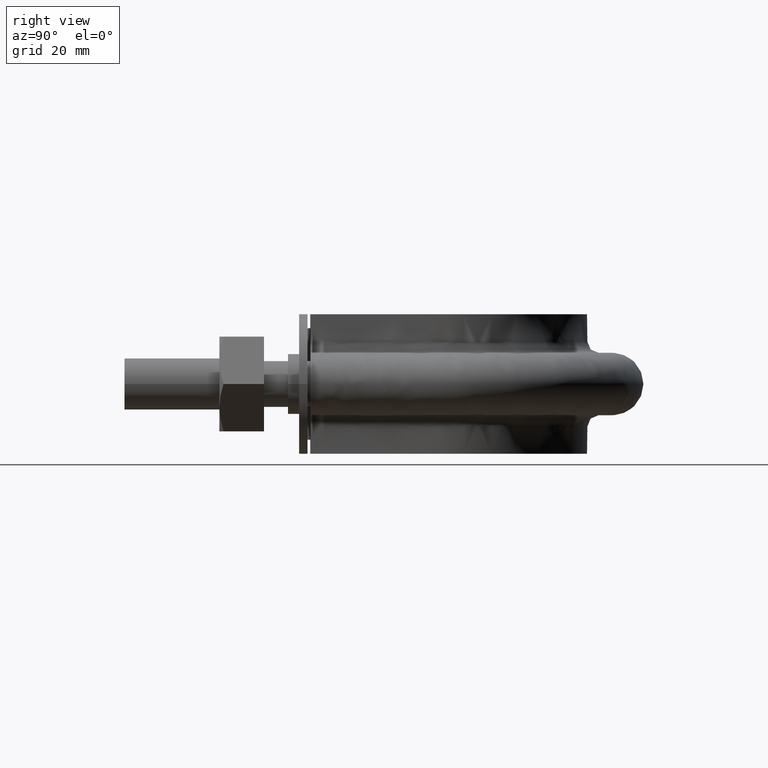
[diagram: clean part render]
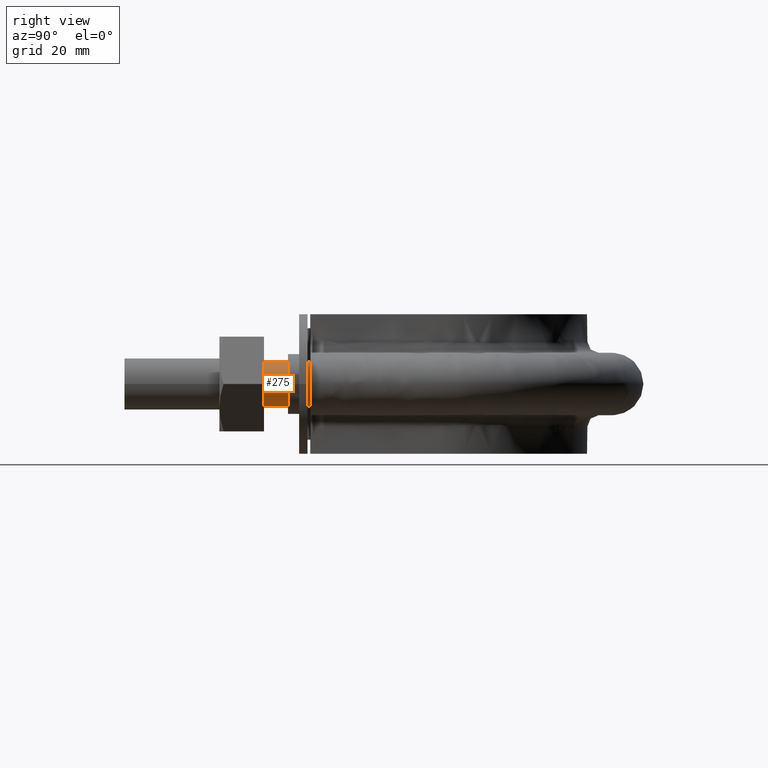
[diagram: same view with one face highlighted and labeled with its STEP entity id]
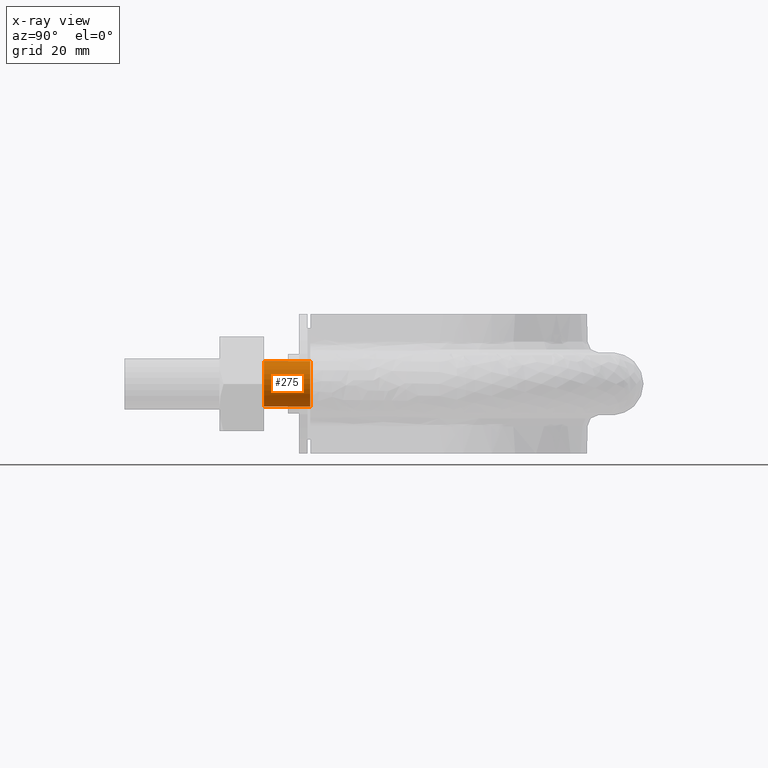
[diagram: x-ray of the same camera — body ghosted, the highlighted face saturated]
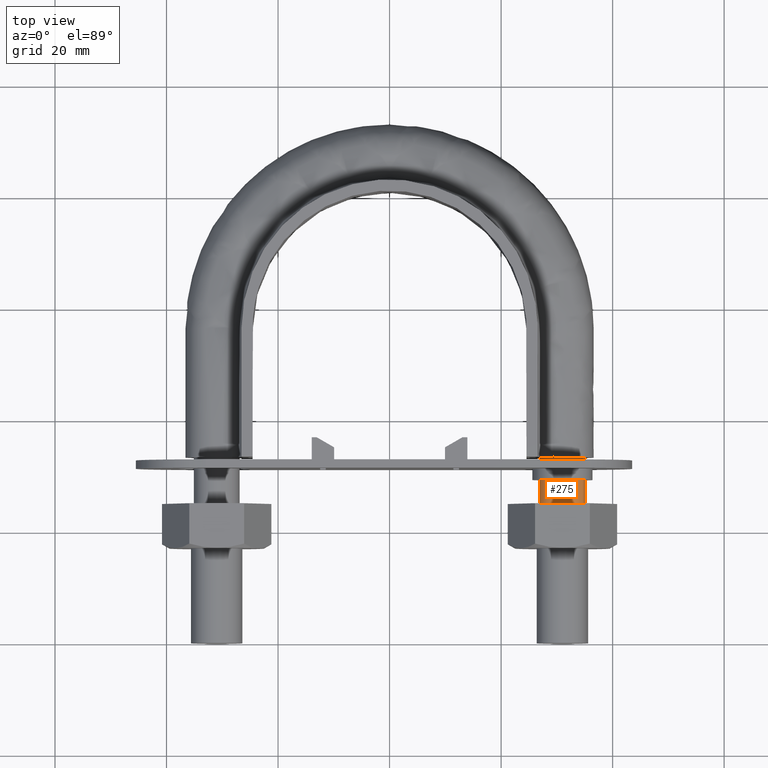
[diagram: same view with one face highlighted and labeled with its STEP entity id]
A machine part, right view. The second image highlights one B-rep face of the part: STEP entity #275.
The next image is the same camera in x-ray: the body ghosted, the highlighted face saturated — about 0% of this face is hidden behind the body in this view.
A second angle (top view) of the same face is appended — the face is thin or edge-on in the first view.
In plain terms, the highlighted cylindrical surface (bore or boss wall) has radius 4.1 mm, axis along (0, 1, 0).
Its self-contained STEP definition (entity closure, byte-faithful):
#275 = ADVANCED_FACE( '', ( #401, #402 ), #403, .T. );
#401 = FACE_OUTER_BOUND( '', #1334, .T. );
#402 = FACE_OUTER_BOUND( '', #1335, .T. );
#403 = CYLINDRICAL_SURFACE( '', #1336, 4.10000000000000 );
#1334 = EDGE_LOOP( '', ( #1789, #1790, #1791, #1792, #1793, #1794, #1795 ) );
#1335 = EDGE_LOOP( '', ( #1796 ) );
#1336 = AXIS2_PLACEMENT_3D( '', #1797, #1798, #1799 );
#1789 = ORIENTED_EDGE( '', *, *, #2567, .T. );
#1790 = ORIENTED_EDGE( '', *, *, #2568, .T. );
#1791 = ORIENTED_EDGE( '', *, *, #2569, .T. );
#1792 = ORIENTED_EDGE( '', *, *, #2570, .T. );
#1793 = ORIENTED_EDGE( '', *, *, #2571, .T. );
#1794 = ORIENTED_EDGE( '', *, *, #2572, .T. );
#1795 = ORIENTED_EDGE( '', *, *, #2573, .T. );
#1796 = ORIENTED_EDGE( '', *, *, #2574, .T. );
#1797 = CARTESIAN_POINT( '', ( 31.0000000000000, 33.3000000000000, 1.03938464280674E-014 ) );
#1798 = DIRECTION( '', ( 2.44921270764475E-016, 1.00000000000000, 3.06151588455594E-016 ) );
#1799 = DIRECTION( '', ( 1.00000000000000, -2.44921270764475E-016, -3.74915180455534E-032 ) );
#2567 = EDGE_CURVE( '', #2825, #2826, #2827, .T. );
#2568 = EDGE_CURVE( '', #2826, #2828, #2829, .T. );
#2569 = EDGE_CURVE( '', #2828, #2830, #2831, .T. );
#2570 = EDGE_CURVE( '', #2830, #2832, #2833, .T. );
#2571 = EDGE_CURVE( '', #2832, #2834, #2835, .T. );
#2572 = EDGE_CURVE( '', #2834, #2836, #2837, .T. );
#2573 = EDGE_CURVE( '', #2836, #2825, #2838, .T. );
#2574 = EDGE_CURVE( '', #2839, #2839, #2840, .F. );
#2825 = VERTEX_POINT( '', #3421 );
#2826 = VERTEX_POINT( '', #3422 );
#2827 = CIRCLE( '', #3423, 4.10000000000000 );
#2828 = VERTEX_POINT( '', #3424 );
#2829 = CIRCLE( '', #3425, 4.10000000000000 );
#2830 = VERTEX_POINT( '', #3426 );
#2831 = CIRCLE( '', #3427, 4.10000000000000 );
#2832 = VERTEX_POINT( '', #3428 );
#2833 = CIRCLE( '', #3429, 4.10000000000000 );
#2834 = VERTEX_POINT( '', #3430 );
#2835 = CIRCLE( '', #3431, 4.10000000000000 );
#2836 = VERTEX_POINT( '', #3432 );
#2837 = CIRCLE( '', #3433, 4.10000000000000 );
#2838 = CIRCLE( '', #3434, 4.10000000000000 );
#2839 = VERTEX_POINT( '', #3435 );
#2840 = CIRCLE( '', #3436, 4.10000000000000 );
#3421 = CARTESIAN_POINT( '', ( 34.6939723584001, 33.3000000000000, 1.77892333038165 ) );
#3422 = CARTESIAN_POINT( '', ( 31.9123358292210, 33.3000000000000, 3.99720443994545 ) );
#3423 = AXIS2_PLACEMENT_3D( '', #4095, #4096, #4097 );
#3424 = CARTESIAN_POINT( '', ( 28.4436918123793, 33.3000000000000, 3.20550907811897 ) );
#3425 = AXIS2_PLACEMENT_3D( '', #4098, #4099, #4100 );
#3426 = CARTESIAN_POINT( '', ( 26.9000000000000, 33.3000000000000, -2.95212466993632E-013 ) );
#3427 = AXIS2_PLACEMENT_3D( '', #4101, #4102, #4103 );
#3428 = CARTESIAN_POINT( '', ( 28.4436918123816, 33.3000000000000, -3.20550907812087 ) );
#3429 = AXIS2_PLACEMENT_3D( '', #4104, #4105, #4106 );
#3430 = CARTESIAN_POINT( '', ( 31.9123358292213, 33.3000000000000, -3.99720443994539 ) );
#3431 = AXIS2_PLACEMENT_3D( '', #4107, #4108, #4109 );
#3432 = CARTESIAN_POINT( '', ( 34.6939723583997, 33.3000000000000, -1.77892333038239 ) );
#3433 = AXIS2_PLACEMENT_3D( '', #4110, #4111, #4112 );
#3434 = AXIS2_PLACEMENT_3D( '', #4113, #4114, #4115 );
#3435 = CARTESIAN_POINT( '', ( 31.0000000000000, 25.0000000000000, 4.10000000000001 ) );
#3436 = AXIS2_PLACEMENT_3D( '', #4116, #4117, #4118 );
#4095 = CARTESIAN_POINT( '', ( 31.0000000000000, 33.3000000000000, 1.03938464280674E-014 ) );
#4096 = DIRECTION( '', ( -2.44921270764475E-016, -1.00000000000000, -3.06151588455594E-016 ) );
#4097 = DIRECTION( '', ( 1.00000000000000, -2.44921270764475E-016, -3.16197804102265E-032 ) );
#4098 = CARTESIAN_POINT( '', ( 31.0000000000000, 33.3000000000000, 1.03938464280674E-014 ) );
#4099 = DIRECTION( '', ( -2.44921270764475E-016, -1.00000000000000, -3.06151588455594E-016 ) );
#4100 = DIRECTION( '', ( 1.00000000000000, -2.44921270764475E-016, -3.16197804102265E-032 ) );
#4101 = CARTESIAN_POINT( '', ( 31.0000000000000, 33.3000000000000, 1.03938464280674E-014 ) );
#4102 = DIRECTION( '', ( -2.44921270764475E-016, -1.00000000000000, -3.06151588455594E-016 ) );
#4103 = DIRECTION( '', ( 1.00000000000000, -2.44921270764475E-016, -3.16197804102265E-032 ) );
#4104 = CARTESIAN_POINT( '', ( 31.0000000000000, 33.3000000000000, 1.03938464280674E-014 ) );
#4105 = DIRECTION( '', ( -2.44921270764475E-016, -1.00000000000000, -3.06151588455594E-016 ) );
#4106 = DIRECTION( '', ( 1.00000000000000, -2.44921270764475E-016, -3.16197804102265E-032 ) );
#4107 = CARTESIAN_POINT( '', ( 31.0000000000000, 33.3000000000000, 1.03938464280674E-014 ) );
#4108 = DIRECTION( '', ( -2.44921270764475E-016, -1.00000000000000, -3.06151588455594E-016 ) );
#4109 = DIRECTION( '', ( 1.00000000000000, -2.44921270764475E-016, -3.16197804102265E-032 ) );
#4110 = CARTESIAN_POINT( '', ( 31.0000000000000, 33.3000000000000, 1.03938464280674E-014 ) );
#4111 = DIRECTION( '', ( -2.44921270764475E-016, -1.00000000000000, -3.06151588455594E-016 ) );
#4112 = DIRECTION( '', ( 1.00000000000000, -2.44921270764475E-016, -3.16197804102265E-032 ) );
#4113 = CARTESIAN_POINT( '', ( 31.0000000000000, 33.3000000000000, 1.03938464280674E-014 ) );
#4114 = DIRECTION( '', ( -2.44921270764475E-016, -1.00000000000000, -3.06151588455594E-016 ) );
#4115 = DIRECTION( '', ( 1.00000000000000, -2.44921270764475E-016, -3.16197804102265E-032 ) );
#4116 = CARTESIAN_POINT( '', ( 31.0000000000000, 25.0000000000000, 7.85278824388599E-015 ) );
#4117 = DIRECTION( '', ( -2.44921270764475E-016, -1.00000000000000, -3.06151588455594E-016 ) );
#4118 = DIRECTION( '', ( -3.74915180455534E-032, -3.06151588455594E-016, 1.00000000000000 ) );